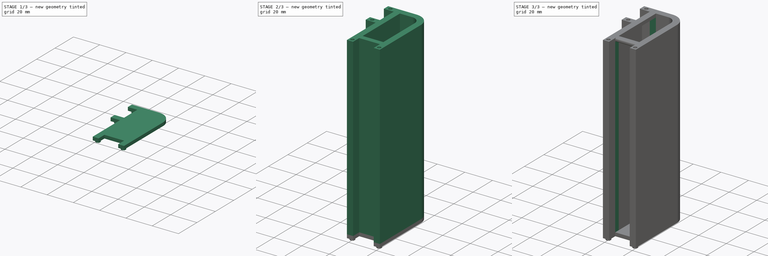
[diagram: build sequence overview — one tinted view per stage of 3, left to right]
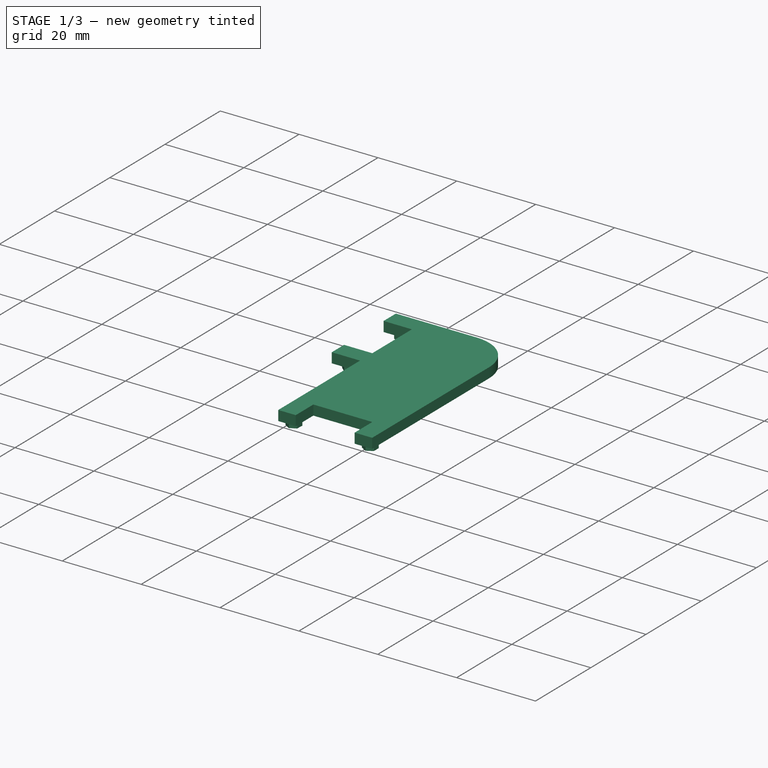
[diagram: stage 1 of 3 — iso view after this stage's code; geometry added in this stage tinted green]
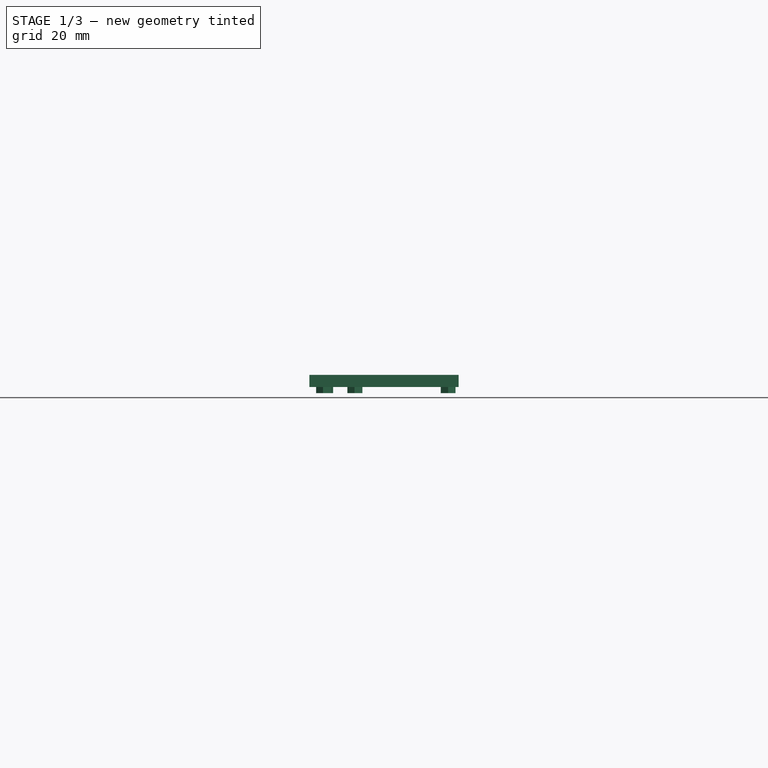
[diagram: stage 1 of 3 — front view after this stage's code; geometry added in this stage tinted green]
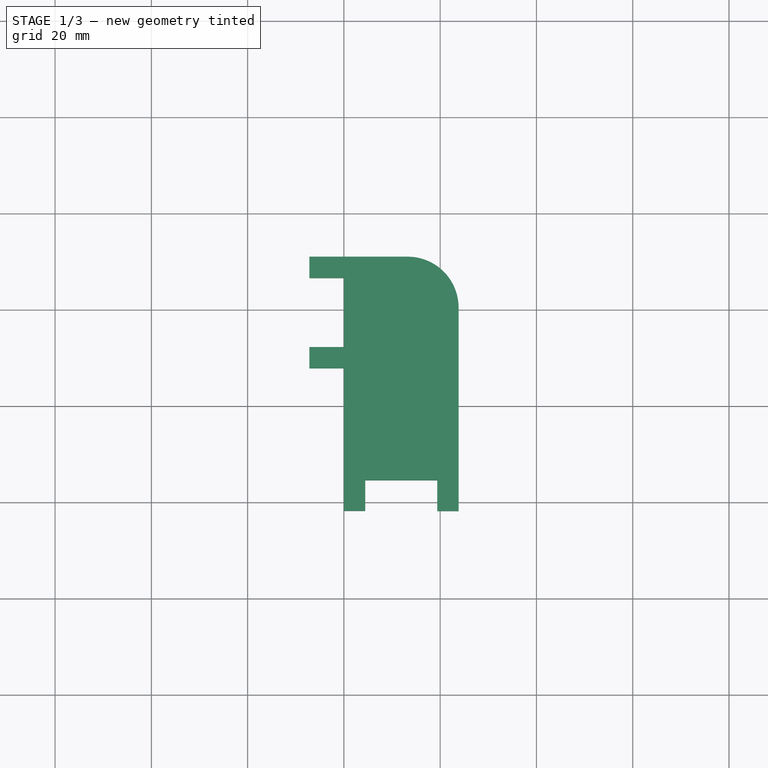
[diagram: stage 1 of 3 — top view after this stage's code; geometry added in this stage tinted green]
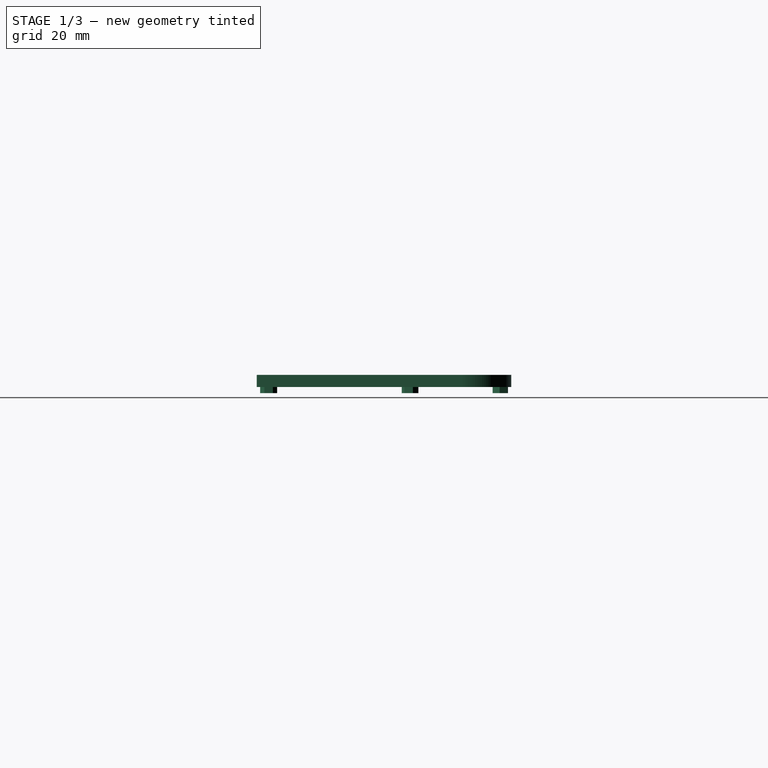
[diagram: stage 1 of 3 — right view after this stage's code; geometry added in this stage tinted green]
FCSTD DOCUMENT  (FreeCAD 0.21R31772 (Git))
Label: mrscoopy_test
License: All rights reserved
LicenseURL: http://en.wikipedia.org/wiki/All_rights_reserved
objects: App::Link×5, Sketcher::SketchObject×4, PartDesign::Pad×3, PartDesign::CoordinateSystem×3, App::DocumentObjectGroup×3, PartDesign::Body×2, PartDesign::Pocket×1, App::FeaturePython×1, PartDesign::Fillet×1, App::Part×1
note: 19 computed .brp shape members not serialized (recipe doc carries the construction recipe); baked Part::Feature solids carry a one-line shape summary decoded from their .brp

FEATURE [PartDesign::Body] Body
  Group = -> [Sketch,Pad,Sketch001,Pocket,Local_CS,Fillet]
  Origin = -> Origin
  Tip = -> Fillet
FEATURE [Sketcher::SketchObject] Sketch003
  FullyConstrained = false
  MapMode = 5
  Support = -> [XY_Plane002]
  sketch-geometry (21):
    g0: LineSegment StartX=0 StartY=26.6063 StartZ=0 EndX=-7.16788 EndY=26.6063 EndZ=0
    g1: LineSegment StartX=-7.16788 StartY=26.6063 StartZ=0 EndX=-7.16788 EndY=31.0413 EndZ=0
    g2: LineSegment StartX=-7.16788 StartY=31.0413 StartZ=0 EndX=13.2403 EndY=31.0413 EndZ=0
    g3: ArcOfCircle CenterX=13.2403 CenterY=20.4538 CenterZ=0 NormalX=0 NormalY=0 NormalZ=1 AngleXU=0 Radius=10.5875 StartAngle=2e-16 EndAngle=1.5708
    g4: LineSegment StartX=23.8278 StartY=20.4538 StartZ=0 EndX=23.8278 EndY=-21.8072 EndZ=0
    g5: LineSegment StartX=23.8278 StartY=-21.8072 StartZ=0 EndX=19.3928 EndY=-21.8072 EndZ=0
    g6: LineSegment StartX=19.3928 StartY=-21.8072 StartZ=0 EndX=19.3928 EndY=-15.4126 EndZ=0
    g7: LineSegment StartX=19.3928 StartY=-15.4126 StartZ=0 EndX=4.43503 EndY=-15.4126 EndZ=0
    g8: LineSegment StartX=4.43503 StartY=-15.4126 StartZ=0 EndX=4.43503 EndY=-21.78 EndZ=0
    g9: LineSegment StartX=4.43503 StartY=-21.78 StartZ=0 EndX=0 EndY=-21.78 EndZ=0
    g10: LineSegment StartX=0 StartY=26.6063 StartZ=0 EndX=0 EndY=12.274 EndZ=0
    g11: LineSegment StartX=0 StartY=12.274 StartZ=0 EndX=-7.16788 EndY=12.274 EndZ=0
    g12: LineSegment StartX=-7.16788 StartY=12.274 StartZ=0 EndX=-7.16788 EndY=7.839 EndZ=0
    g13: LineSegment StartX=-7.16788 StartY=7.839 StartZ=0 EndX=0 EndY=7.839 EndZ=0
    g14: LineSegment StartX=0 StartY=7.839 StartZ=0 EndX=0 EndY=-21.78 EndZ=0
    g15: Circle CenterX=-3.99854 CenterY=28.777 CenterZ=0 NormalX=0 NormalY=0 NormalZ=1 AngleXU=0 Radius=1.27118
    g16: Circle CenterX=-3.99854 CenterY=10.0357 CenterZ=0 NormalX=0 NormalY=0 NormalZ=1 AngleXU=0 Radius=1.27118
    g17: Circle CenterX=2.26851 CenterY=-19.3586 CenterZ=0 NormalX=0 NormalY=0 NormalZ=1 AngleXU=0 Radius=1.27118
    g18: Circle CenterX=21.6462 CenterY=-19.3586 CenterZ=0 NormalX=0 NormalY=0 NormalZ=1 AngleXU=0 Radius=1.27118
    g19: LineSegment StartX=2.26851 StartY=-19.3586 StartZ=0 EndX=21.6462 EndY=-19.3586 EndZ=0
    g20: LineSegment StartX=-3.99854 StartY=10.0357 StartZ=0 EndX=-3.99854 EndY=28.777 EndZ=0
  constraints (45):
    c: PointOnObject(g0,g-2)
    c: Horizontal(g0)
    c: Coincident(g0,g1)
    c: Vertical(g1)
    c: Coincident(g1,g2)
    c: Horizontal(g2)
    c: Coincident(g3,g2)
    c: Tangent(g3,g4) = 1.5708
    c: Coincident(g4,g5)
    c: Horizontal(g5)
    c: Coincident(g5,g6)
    c: Vertical(g6)
    c: Coincident(g6,g7)
    c: Horizontal(g7)
    c: Coincident(g7,g8)
    c: Vertical(g8)
    c: Coincident(g8,g9)
    c: PointOnObject(g9,g-2)
    c: Horizontal(g9)
    c: Vertical(g4)
    c: Equal(g5,g9)
    c: Equal(g1,g5)
    c: Tangent(g3,g2)
    c: Coincident(g0,g10)
    c: PointOnObject(g10,g-2)
    c: Coincident(g10,g11)
    c: Horizontal(g11)
    c: Coincident(g11,g12)
    c: Vertical(g12)
    c: Coincident(g12,g13)
    c: PointOnObject(g13,g-2)
    c: Horizontal(g13)
    c: Coincident(g14,g9)
    c: Equal(g0,g11)
    c: Equal(g12,g1)
    c: Equal(g15,g16)
    c: Equal(g15,g17)
    c: Equal(g15,g18)
    c: Coincident(g19,g17)
    c: Coincident(g19,g18)
    c: Horizontal(g19)
    c: Coincident(g20,g16)
    c: Coincident(g20,g15)
    c: Vertical(g20)
    c: Coincident(g14,g13)
FEATURE [PartDesign::Pad] Pad001
  Direction = (0,0,1)
  Length = 2.54
  Length2 = 10
  Profile = -> Sketch003
  ReferenceAxis = -> Sketch003 [N_Axis]
  Reversed = true
  Type = 0
FEATURE [Sketcher::SketchObject] Sketch004
  FullyConstrained = false
  MapMode = 5
  Support = -> [XY_Plane002]
  sketch-geometry (32):
    g0: Circle CenterX=-3.99854 CenterY=28.777 CenterZ=0 NormalX=0 NormalY=0 NormalZ=1 AngleXU=0 Radius=1.27118
    g1: Circle CenterX=-3.99854 CenterY=10.0357 CenterZ=0 NormalX=0 NormalY=0 NormalZ=1 AngleXU=0 Radius=1.27118
    g2: Circle CenterX=2.26851 CenterY=-19.3586 CenterZ=0 NormalX=0 NormalY=0 NormalZ=1 AngleXU=0 Radius=1.27118
    g3: Circle CenterX=21.6462 CenterY=-19.3586 CenterZ=0 NormalX=0 NormalY=0 NormalZ=1 AngleXU=0 Radius=1.27118
    g4: LineSegment StartX=-2.99658 StartY=30.2291 StartZ=0 EndX=-4.75513 EndY=30.3708 EndZ=0
    g5: LineSegment StartX=-4.75513 StartY=30.3708 StartZ=0 EndX=-5.75709 EndY=28.9187 EndZ=0
    g6: LineSegment StartX=-5.75709 StartY=28.9187 StartZ=0 EndX=-5.0005 EndY=27.3249 EndZ=0
    g7: LineSegment StartX=-5.0005 StartY=27.3249 StartZ=0 EndX=-3.24195 EndY=27.1832 EndZ=0
    g8: LineSegment StartX=-3.24195 StartY=27.1832 StartZ=0 EndX=-2.23999 EndY=28.6353 EndZ=0
    g9: LineSegment StartX=-2.23999 StartY=28.6353 StartZ=0 EndX=-2.99658 EndY=30.2291 EndZ=0
    g10: Circle CenterX=-3.99854 CenterY=28.777 CenterZ=0 NormalX=0 NormalY=0 NormalZ=1 AngleXU=0 Radius=1.76425
    g11: LineSegment StartX=-4.33287 StartY=8.3034 StartZ=0 EndX=-2.6655 EndY=8.88 EndZ=0
    g12: LineSegment StartX=-2.6655 StartY=8.88 StartZ=0 EndX=-2.33117 EndY=10.6123 EndZ=0
    g13: LineSegment StartX=-2.33117 StartY=10.6123 StartZ=0 EndX=-3.66421 EndY=11.768 EndZ=0
    g14: LineSegment StartX=-3.66421 StartY=11.768 StartZ=0 EndX=-5.33157 EndY=11.1914 EndZ=0
    g15: LineSegment StartX=-5.33157 StartY=11.1914 StartZ=0 EndX=-5.6659 EndY=9.45907 EndZ=0
    g16: LineSegment StartX=-5.6659 StartY=9.45907 StartZ=0 EndX=-4.33287 EndY=8.3034 EndZ=0
    g17: Circle CenterX=-3.99854 CenterY=10.0357 CenterZ=0 NormalX=0 NormalY=0 NormalZ=1 AngleXU=0 Radius=1.76425
    g18: LineSegment StartX=2.33191 StartY=-17.5955 StartZ=0 EndX=0.773315 EndY=-18.4221 EndZ=0
    g19: LineSegment StartX=0.773315 StartY=-18.4221 StartZ=0 EndX=0.709916 EndY=-20.1852 EndZ=0
    g20: LineSegment StartX=0.709916 StartY=-20.1852 StartZ=0 EndX=2.20511 EndY=-21.1217 EndZ=0
    g21: LineSegment StartX=2.20511 StartY=-21.1217 StartZ=0 EndX=3.76371 EndY=-20.2951 EndZ=0
    g22: LineSegment StartX=3.76371 StartY=-20.2951 StartZ=0 EndX=3.82711 EndY=-18.5319 EndZ=0
    g23: LineSegment StartX=3.82711 StartY=-18.5319 StartZ=0 EndX=2.33191 EndY=-17.5955 EndZ=0
    g24: Circle CenterX=2.26851 CenterY=-19.3586 CenterZ=0 NormalX=0 NormalY=0 NormalZ=1 AngleXU=0 Radius=1.76425
    g25: LineSegment StartX=23.1676 StartY=-18.4653 StartZ=0 EndX=21.6333 EndY=-17.5944 EndZ=0
    g26: LineSegment StartX=21.6333 StartY=-17.5944 StartZ=0 EndX=20.1119 EndY=-18.4877 EndZ=0
    g27: LineSegment StartX=20.1119 StartY=-18.4877 StartZ=0 EndX=20.1249 EndY=-20.2519 EndZ=0
    g28: LineSegment StartX=20.1249 StartY=-20.2519 StartZ=0 EndX=21.6592 EndY=-21.1228 EndZ=0
    g29: LineSegment StartX=21.6592 StartY=-21.1228 StartZ=0 EndX=23.1806 EndY=-20.2295 EndZ=0
    g30: LineSegment StartX=23.1806 StartY=-20.2295 StartZ=0 EndX=23.1676 EndY=-18.4653 EndZ=0
    g31: Circle CenterX=21.6462 CenterY=-19.3586 CenterZ=0 NormalX=0 NormalY=0 NormalZ=1 AngleXU=0 Radius=1.76425
  constraints (66):
    c: Equal(g0,g1)
    c: Equal(g0,g2)
    c: Equal(g0,g3)
    c: Block(g0)
    c: Block(g1)
    c: Block(g3)
    c: Block(g2)
    c: Coincident(g4,g5)
    c: Coincident(g5,g6)
    c: Coincident(g6,g7)
    c: Coincident(g7,g8)
    c: Coincident(g8,g9)
    c: Coincident(g9,g4)
    c: Equal(g4, g5-g9) x5
    c: PointOnObject(g4,g10)
    c: PointOnObject(g5,g10)
    c: PointOnObject(g6,g10)
    c: PointOnObject(g7,g10)
    c: PointOnObject(g8,g10)
    c: PointOnObject(g9,g10)
    c: Coincident(g10,g0)
    c: Coincident(g11,g12)
    c: Coincident(g12,g13)
    c: Coincident(g13,g14)
    c: Coincident(g14,g15)
    c: Coincident(g15,g16)
    c: Coincident(g16,g11)
    c: Equal(g11, g12-g16) x5
    c: PointOnObject(g11,g17)
    c: PointOnObject(g12,g17)
    c: PointOnObject(g13,g17)
    c: PointOnObject(g14,g17)
    c: PointOnObject(g15,g17)
    c: PointOnObject(g16,g17)
    c: Coincident(g17,g1)
    c: Coincident(g18,g19)
    c: Coincident(g19,g20)
    c: Coincident(g20,g21)
    c: Coincident(g21,g22)
    c: Coincident(g22,g23)
    c: Coincident(g23,g18)
    c: Equal(g18, g19-g23) x5
    c: PointOnObject(g18,g24)
    c: PointOnObject(g19,g24)
    c: PointOnObject(g20,g24)
    c: PointOnObject(g21,g24)
    c: PointOnObject(g22,g24)
    c: PointOnObject(g23,g24)
    c: Coincident(g24,g2)
    c: Coincident(g25,g26)
    c: Coincident(g26,g27)
    c: Coincident(g27,g28)
    c: Coincident(g28,g29)
    c: Coincident(g29,g30)
    c: Coincident(g30,g25)
    c: Equal(g25, g26-g30) x5
    c: PointOnObject(g25,g31)
    c: PointOnObject(g26,g31)
    c: PointOnObject(g27,g31)
    c: PointOnObject(g28,g31)
    c: PointOnObject(g29,g31)
    c: PointOnObject(g30,g31)
    c: Coincident(g31,g3)
    c: Equal(g10,g17)
    c: Equal(g17,g24)
    c: Equal(g24,g31)
FEATURE [PartDesign::Pad] Pad002
  BaseFeature = -> Pad001
  Direction = (0,0,1)
  Length = 3.81
  Length2 = 10
  Profile = -> Sketch004
  ReferenceAxis = -> Sketch004 [N_Axis]
  Reversed = true
  Type = 0
FEATURE [PartDesign::CoordinateSystem] Local_CS001
  AttacherType = Attacher::AttachEngine3D
  MapMode = 2
FEATURE [PartDesign::Body] Body004
  Group = -> [Sketch003,Pad001,Sketch004,Pad002,Local_CS001]
  Origin = -> Origin002
  Tip = -> Pad002
FEATURE [App::DocumentObjectGroup] Parts
  Group = -> [Body,Body004]
FEATURE [App::Link] Body005
  AssemblyType = Part::Link
  AttachedBy = #Local_CS001
  AttachedTo = Parent Assembly#LCS_Origin
  AttachmentOffset = pos=(0,0,-127) rot=(0,0,1;0rad)
  LinkPlacement = pos=(0,0,-127) rot=(0,0,1;0rad)
  LinkedObject = -> Body004
  Placement = pos=(0,0,-127) rot=(0,0,1;0rad)
  SolverId = Asm4EE
  expr: Placement = LCS_Origin.Placement * AttachmentOffset * Local_CS001.Placement ^ -1
FEATURE [App::Link] Body006
  AssemblyType = Part::Link
  AttachedBy = #Local_CS001
  AttachedTo = Parent Assembly#LCS_Origin
  AttachmentOffset = pos=(0,0,254) rot=(0,0,1;0rad)
  LinkPlacement = pos=(0,0,254) rot=(0,0,1;0rad)
  LinkedObject = -> Body004
  Placement = pos=(0,0,254) rot=(0,0,1;0rad)
  SolverId = Asm4EE
  expr: Placement = LCS_Origin.Placement * AttachmentOffset * Local_CS001.Placement ^ -1
FEATURE [App::Part] Model
  AssemblyType = Part::Link
  Group = -> [LCS_Origin,Constraints,Variables,Configurations,Body001,Body002,Body003,Body005,Body006]
  Origin = -> Origin001
  Type = Assembly
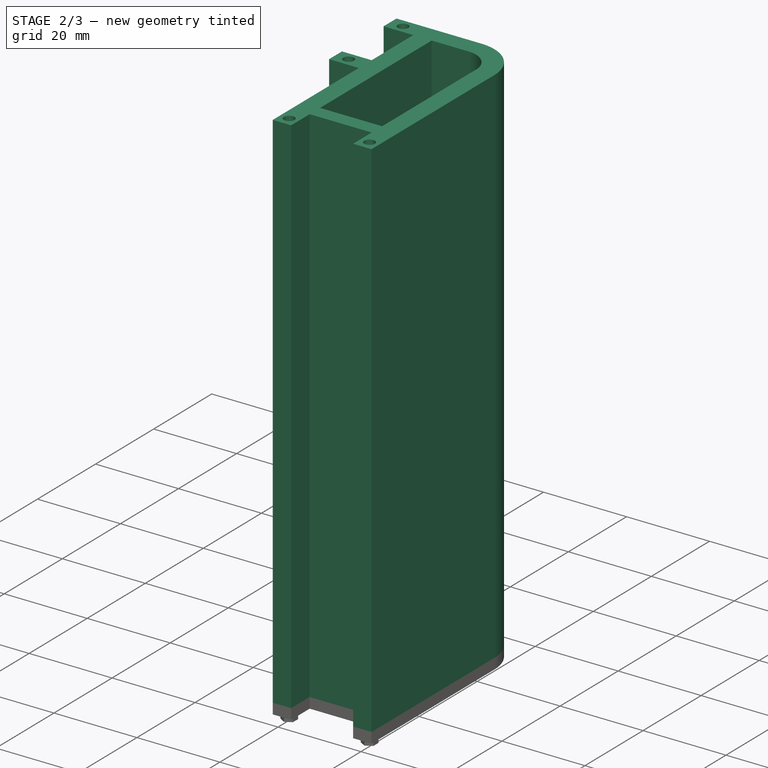
[diagram: stage 2 of 3 — iso view after this stage's code; geometry added in this stage tinted green]
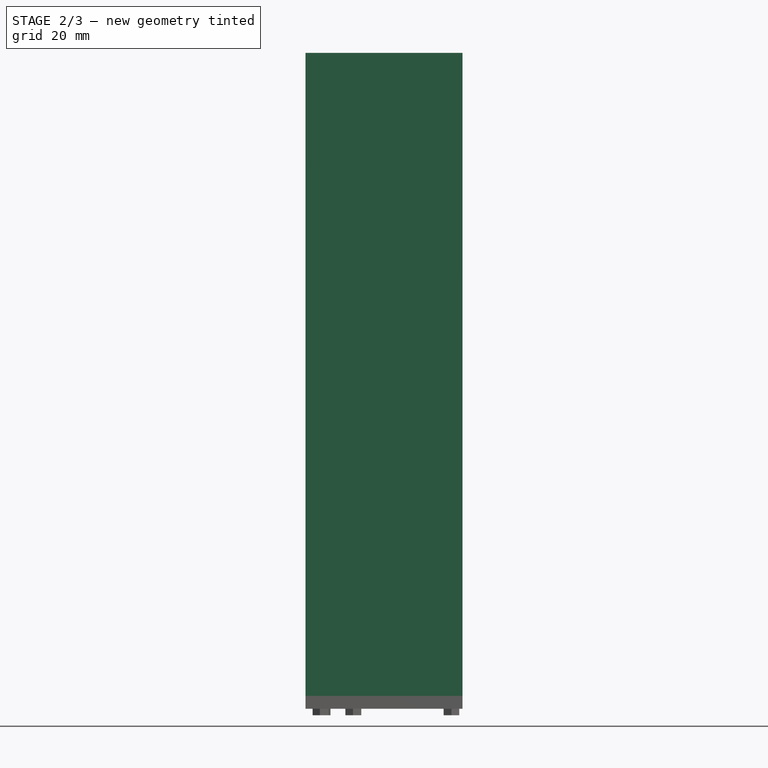
[diagram: stage 2 of 3 — front view after this stage's code; geometry added in this stage tinted green]
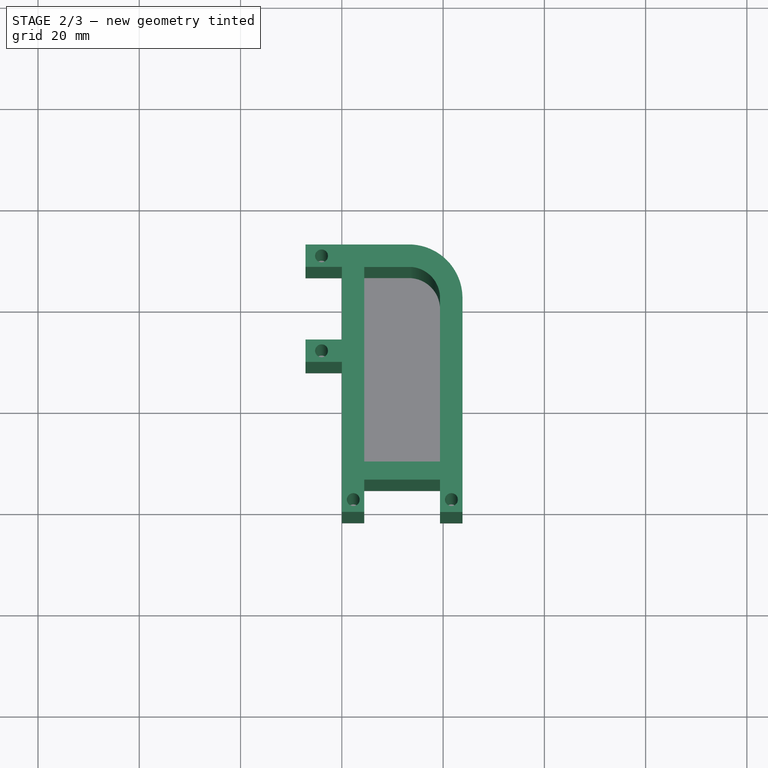
[diagram: stage 2 of 3 — top view after this stage's code; geometry added in this stage tinted green]
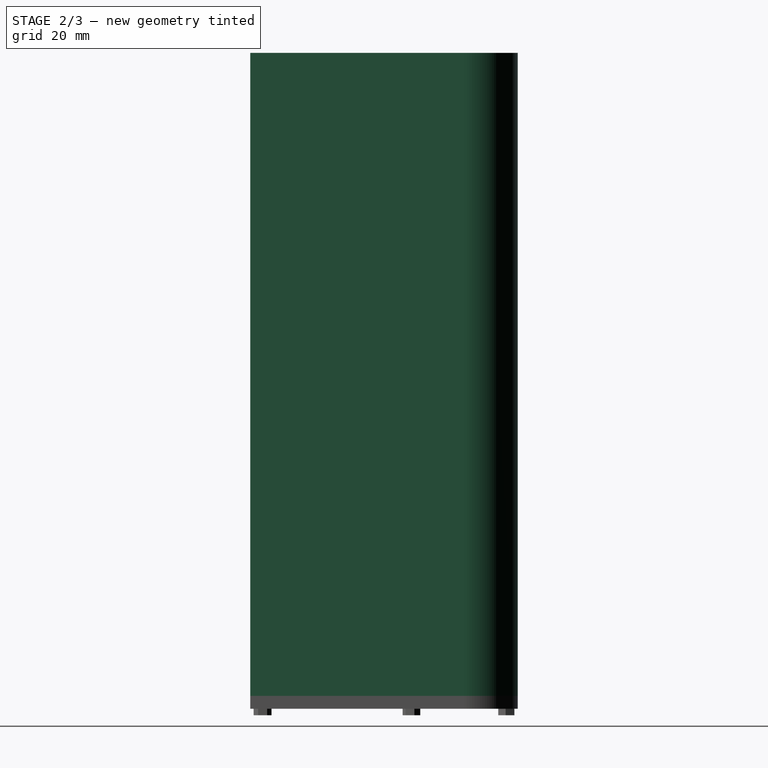
[diagram: stage 2 of 3 — right view after this stage's code; geometry added in this stage tinted green]
FEATURE [Sketcher::SketchObject] Sketch
  FullyConstrained = false
  MapMode = 5
  Support = -> [XY_Plane]
  sketch-geometry (26):
    g0: LineSegment StartX=0 StartY=26.6063 StartZ=0 EndX=-7.16788 EndY=26.6063 EndZ=0
    g1: LineSegment StartX=-7.16788 StartY=26.6063 StartZ=0 EndX=-7.16788 EndY=31.0413 EndZ=0
    g2: LineSegment StartX=-7.16788 StartY=31.0413 StartZ=0 EndX=13.2403 EndY=31.0413 EndZ=0
    g3: ArcOfCircle CenterX=13.2403 CenterY=20.4538 CenterZ=0 NormalX=0 NormalY=0 NormalZ=1 AngleXU=0 Radius=10.5875 StartAngle=2e-16 EndAngle=1.5708
    g4: LineSegment StartX=23.8278 StartY=20.4538 StartZ=0 EndX=23.8278 EndY=-21.8072 EndZ=0
    g5: LineSegment StartX=23.8278 StartY=-21.8072 StartZ=0 EndX=19.3928 EndY=-21.8072 EndZ=0
    g6: LineSegment StartX=19.3928 StartY=-21.8072 StartZ=0 EndX=19.3928 EndY=-15.4126 EndZ=0
    g7: LineSegment StartX=19.3928 StartY=-15.4126 StartZ=0 EndX=4.43503 EndY=-15.4126 EndZ=0
    g8: LineSegment StartX=4.43503 StartY=-15.4126 StartZ=0 EndX=4.43503 EndY=-21.78 EndZ=0
    g9: LineSegment StartX=4.43503 StartY=-21.78 StartZ=0 EndX=0 EndY=-21.78 EndZ=0
    g10: LineSegment StartX=0 StartY=26.6063 StartZ=0 EndX=0 EndY=12.274 EndZ=0
    g11: LineSegment StartX=0 StartY=12.274 StartZ=0 EndX=-7.16788 EndY=12.274 EndZ=0
    g12: LineSegment StartX=-7.16788 StartY=12.274 StartZ=0 EndX=-7.16788 EndY=7.839 EndZ=0
    g13: LineSegment StartX=-7.16788 StartY=7.839 StartZ=0 EndX=0 EndY=7.839 EndZ=0
    g14: LineSegment StartX=0 StartY=7.839 StartZ=0 EndX=0 EndY=-21.78 EndZ=0
    g15: LineSegment StartX=19.3928 StartY=20.1836 StartZ=0 EndX=19.3928 EndY=-11.8217 EndZ=0
    g16: LineSegment StartX=19.3928 StartY=-11.8217 StartZ=0 EndX=4.43503 EndY=-11.8217 EndZ=0
    g17: LineSegment StartX=4.43503 StartY=-11.8217 StartZ=0 EndX=4.43503 EndY=26.5927 EndZ=0
    g18: LineSegment StartX=4.43503 StartY=26.5927 StartZ=0 EndX=13.7304 EndY=26.5927 EndZ=0
    g19: ArcOfCircle CenterX=13.2403 CenterY=20.4538 CenterZ=0 NormalX=0 NormalY=0 NormalZ=1 AngleXU=0 Radius=6.15845 StartAngle=6.23931 EndAngle=7.77431
    g20: Circle CenterX=-3.99854 CenterY=28.777 CenterZ=0 NormalX=0 NormalY=0 NormalZ=1 AngleXU=0 Radius=1.27118
    g21: Circle CenterX=-3.99854 CenterY=10.0357 CenterZ=0 NormalX=0 NormalY=0 NormalZ=1 AngleXU=0 Radius=1.27118
    g22: Circle CenterX=2.26851 CenterY=-19.3586 CenterZ=0 NormalX=0 NormalY=0 NormalZ=1 AngleXU=0 Radius=1.27118
    g23: Circle CenterX=21.6462 CenterY=-19.3586 CenterZ=0 NormalX=0 NormalY=0 NormalZ=1 AngleXU=0 Radius=1.27118
    g24: LineSegment StartX=2.26851 StartY=-19.3586 StartZ=0 EndX=21.6462 EndY=-19.3586 EndZ=0
    g25: LineSegment StartX=-3.99854 StartY=10.0357 StartZ=0 EndX=-3.99854 EndY=28.777 EndZ=0
  constraints (55):
    c: PointOnObject(g0,g-2)
    c: Horizontal(g0)
    c: Coincident(g0,g1)
    c: Vertical(g1)
    c: Coincident(g1,g2)
    c: Horizontal(g2)
    c: Coincident(g3,g2)
    c: Tangent(g3,g4) = 1.5708
    c: Coincident(g4,g5)
    c: Horizontal(g5)
    c: Coincident(g5,g6)
    c: Vertical(g6)
    c: Coincident(g6,g7)
    c: Horizontal(g7)
    c: Coincident(g7,g8)
    c: Vertical(g8)
    c: Coincident(g8,g9)
    c: PointOnObject(g9,g-2)
    c: Horizontal(g9)
    c: Vertical(g4)
    c: Equal(g5,g9)
    c: Equal(g1,g5)
    c: Tangent(g3,g2)
    c: Coincident(g0,g10)
    c: PointOnObject(g10,g-2)
    c: Coincident(g10,g11)
    c: Horizontal(g11)
    c: Coincident(g11,g12)
    c: Vertical(g12)
    c: Coincident(g12,g13)
    c: PointOnObject(g13,g-2)
    c: Horizontal(g13)
    c: Coincident(g14,g9)
    c: Coincident(g15,g16)
    c: Horizontal(g16)
    c: Coincident(g16,g17)
    c: Coincident(g18,g17)
    c: Horizontal(g18)
    c: Coincident(g19,g3)
    c: Coincident(g19,g18)
    c: Coincident(g19,g15)
    c: Tangent(g17,g8)
    c: Tangent(g15,g6)
    c: Equal(g0,g11)
    c: Equal(g12,g1)
    c: Equal(g20,g21)
    c: Equal(g20,g22)
    c: Equal(g20,g23)
    c: Coincident(g24,g22)
    c: Coincident(g24,g23)
    c: Horizontal(g24)
    c: Coincident(g25,g21)
    c: Coincident(g25,g20)
    c: Vertical(g25)
    c: Coincident(g14,g13)
FEATURE [PartDesign::Pad] Pad
  Direction = (0,0,1)
  Length = 127
  Length2 = 10
  Profile = -> Sketch
  ReferenceAxis = -> Sketch [N_Axis]
  Type = 0
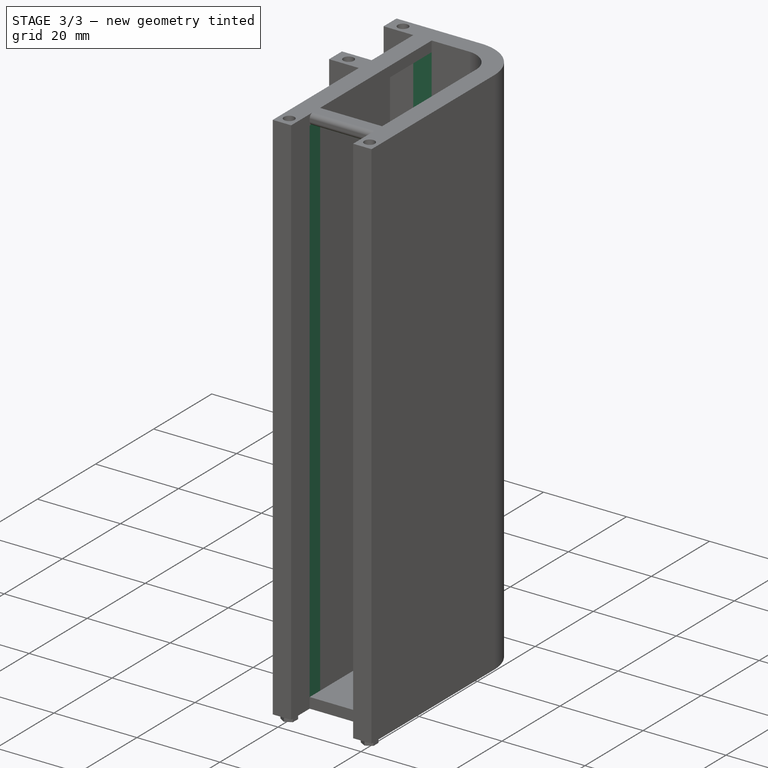
[diagram: stage 3 of 3 — iso view after this stage's code; geometry added in this stage tinted green]
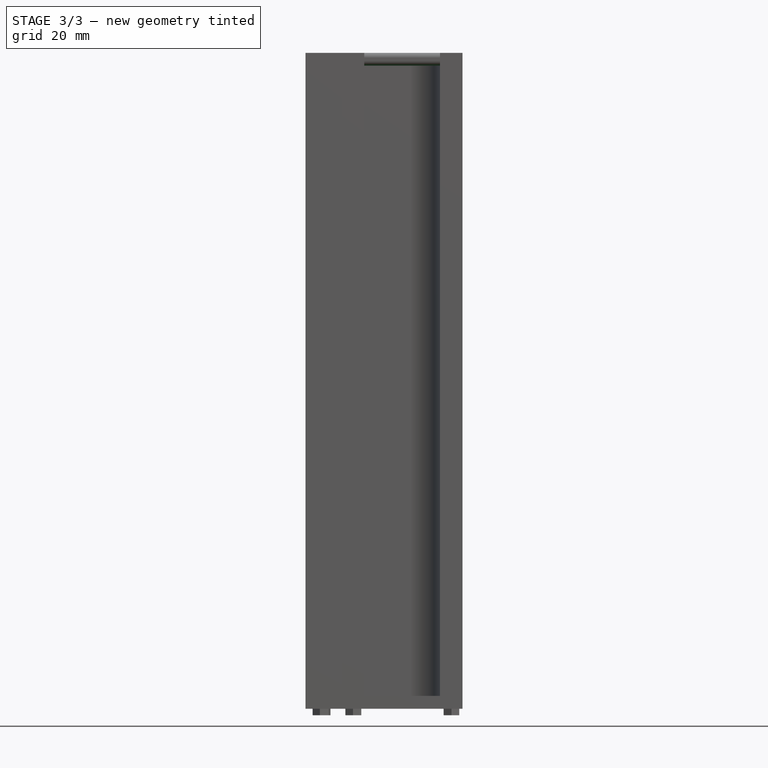
[diagram: stage 3 of 3 — front view after this stage's code; geometry added in this stage tinted green]
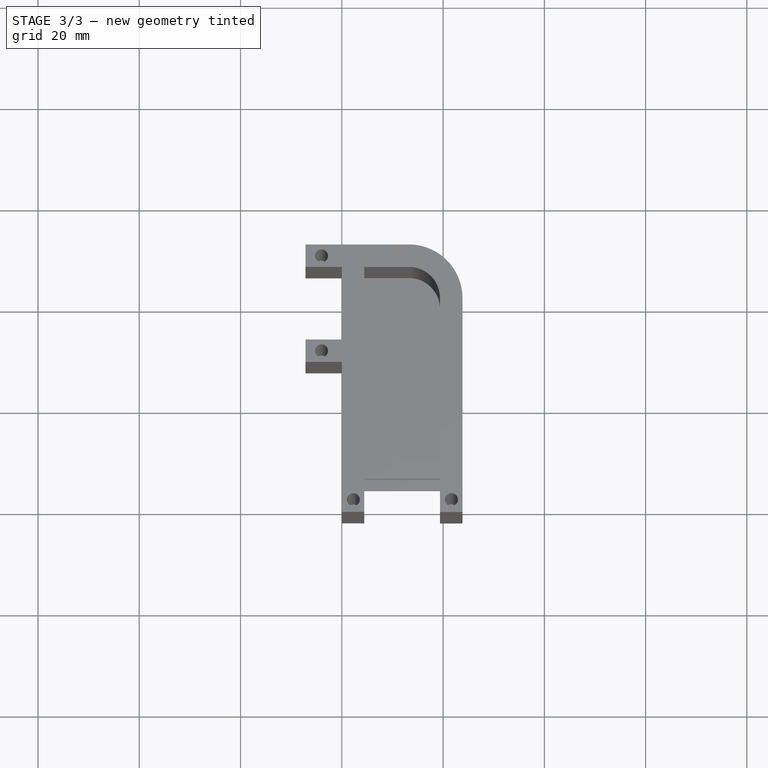
[diagram: stage 3 of 3 — top view after this stage's code; geometry added in this stage tinted green]
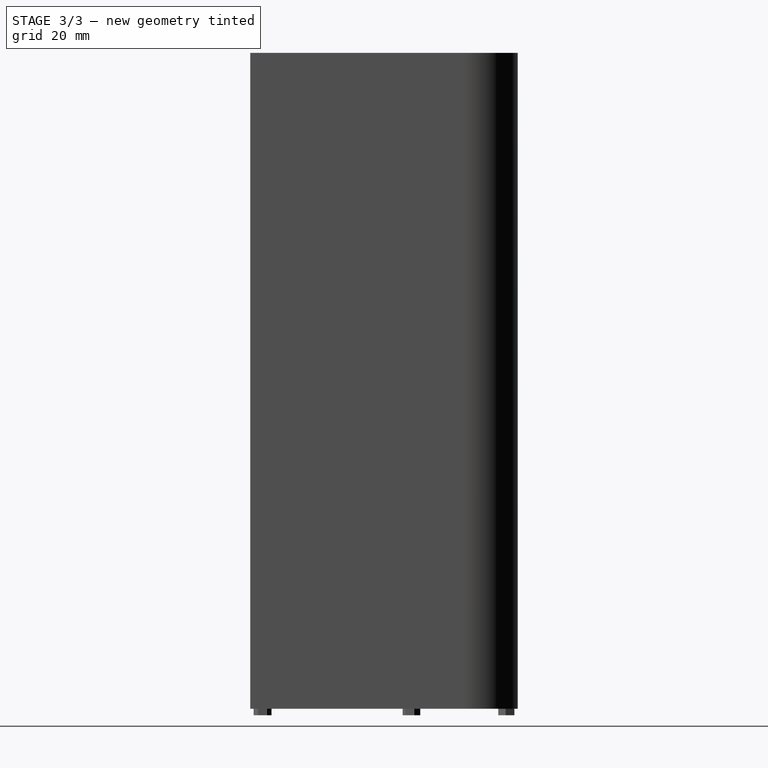
[diagram: stage 3 of 3 — right view after this stage's code; geometry added in this stage tinted green]
FEATURE [Sketcher::SketchObject] Sketch001
  FullyConstrained = false
  MapMode = 5
  Support = -> [XY_Plane]
  sketch-geometry (8):
    g0: LineSegment StartX=0 StartY=26.6033 StartZ=0 EndX=4.4361 EndY=26.6033 EndZ=0
    g1: LineSegment StartX=4.4361 StartY=26.6033 StartZ=0 EndX=4.4361 EndY=12.2559 EndZ=0
    g2: LineSegment StartX=4.4361 StartY=12.2559 StartZ=0 EndX=0 EndY=12.2559 EndZ=0
    g3: LineSegment StartX=0 StartY=12.2559 StartZ=0 EndX=0 EndY=26.6033 EndZ=0
    g4: LineSegment StartX=4.4361 StartY=-11.8217 StartZ=0 EndX=19.3928 EndY=-11.8217 EndZ=0
    g5: LineSegment StartX=19.3928 StartY=-11.8217 StartZ=0 EndX=19.3928 EndY=-15.4126 EndZ=0
    g6: LineSegment StartX=19.3928 StartY=-15.4126 StartZ=0 EndX=4.4361 EndY=-15.4126 EndZ=0
    g7: LineSegment StartX=4.4361 StartY=-15.4126 StartZ=0 EndX=4.4361 EndY=-11.8217 EndZ=0
  constraints (17):
    c: PointOnObject(g0,g-2)
    c: Coincident(g0,g1)
    c: Coincident(g1,g2)
    c: Coincident(g2,g3)
    c: Coincident(g3,g0)
    c: Horizontal(g0)
    c: Horizontal(g2)
    c: Vertical(g1)
    c: Vertical(g3)
    c: Coincident(g4,g5)
    c: Coincident(g5,g6)
    c: Coincident(g6,g7)
    c: Coincident(g7,g4)
    c: Horizontal(g4)
    c: Horizontal(g6)
    c: Vertical(g5)
    c: Vertical(g7)
FEATURE [PartDesign::Pocket] Pocket
  BaseFeature = -> Pad
  Direction = (0,0,-1)
  Length = 124.46
  Length2 = 5
  Profile = -> Sketch001
  ReferenceAxis = -> Sketch001 [N_Axis]
  Reversed = true
  Type = 0
FEATURE [PartDesign::CoordinateSystem] LCS_Origin
  AttacherType = Attacher::AttachEngine3D
  MapMode = 2
  Support = -> [X_Axis001]
FEATURE [App::DocumentObjectGroup] Constraints
FEATURE [App::FeaturePython] Variables  # WARN: FeaturePython — macro-defined, semantics opaque (R4)
  Type = App::PropertyContainer
FEATURE [App::DocumentObjectGroup] Configurations
FEATURE [App::Link] Body001
  AssemblyType = Part::Link
  LinkedObject = -> Body
FEATURE [App::Link] Body002
  AttachmentOffset = pos=(0,0,228.6) rot=(0,0,1;0rad)
  LinkPlacement = pos=(0,0,127) rot=(0,0,1;0rad)
  LinkedObject = -> Body
  Placement = pos=(0,0,127) rot=(0,0,1;0rad)
FEATURE [PartDesign::CoordinateSystem] Local_CS
  AttacherType = Attacher::AttachEngine3D
  MapMode = 5
  Support = -> [XY_Plane]
FEATURE [App::Link] Body003
  AssemblyType = Part::Link
  AttachedBy = #Local_CS
  AttachedTo = Parent Assembly#LCS_Origin
  AttachmentOffset = pos=(0,0,-127) rot=(0,0,1;0rad)
  LinkPlacement = pos=(0,0,-127) rot=(0,0,1;0rad)
  LinkedObject = -> Body
  Placement = pos=(0,0,-127) rot=(0,0,1;0rad)
  SolverId = Asm4EE
  expr: Placement = LCS_Origin.Placement * AttachmentOffset * Local_CS.Placement ^ -1
FEATURE [PartDesign::Fillet] Fillet
  Base = -> Pocket [Edge72,Edge31]
  BaseFeature = -> Pocket
  Radius = 0.9906
  SupportTransform = false
  UseAllEdges = false
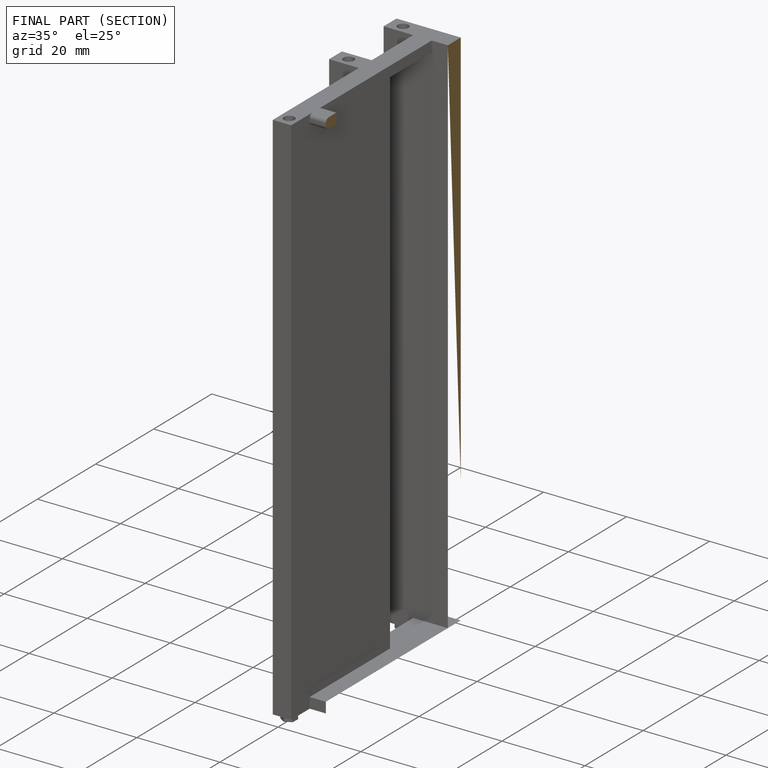
[diagram: finished part — half-section view (interior)]
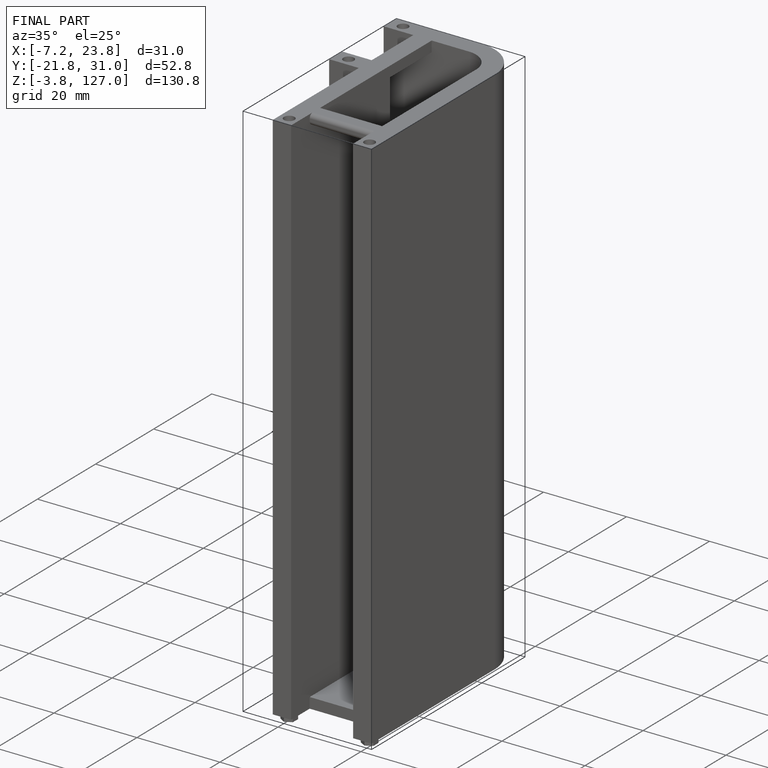
[diagram: finished part — iso view with bounding-box wireframe]
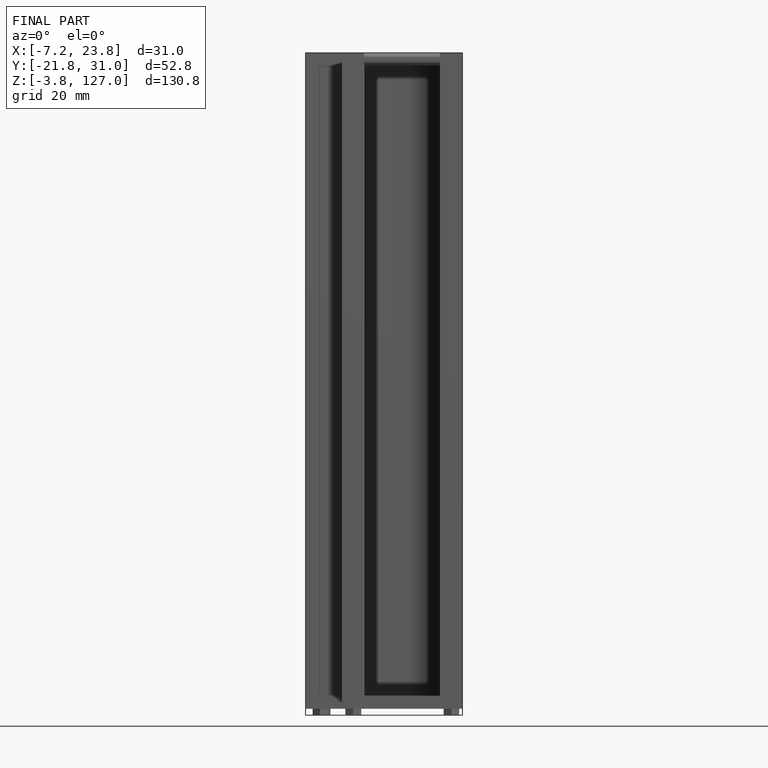
[diagram: finished part — front view with bounding-box wireframe]
